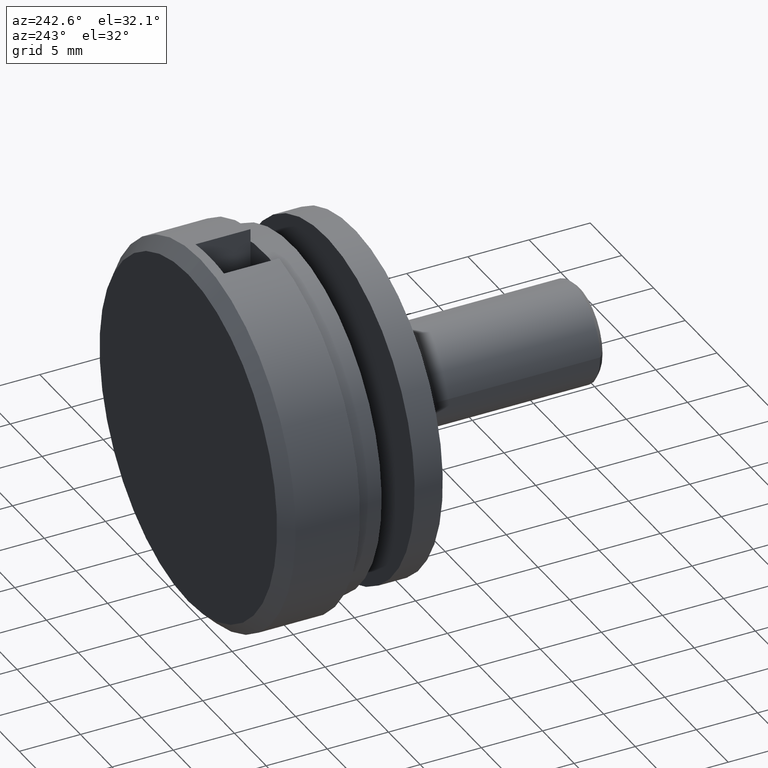
[diagram: clean part render]
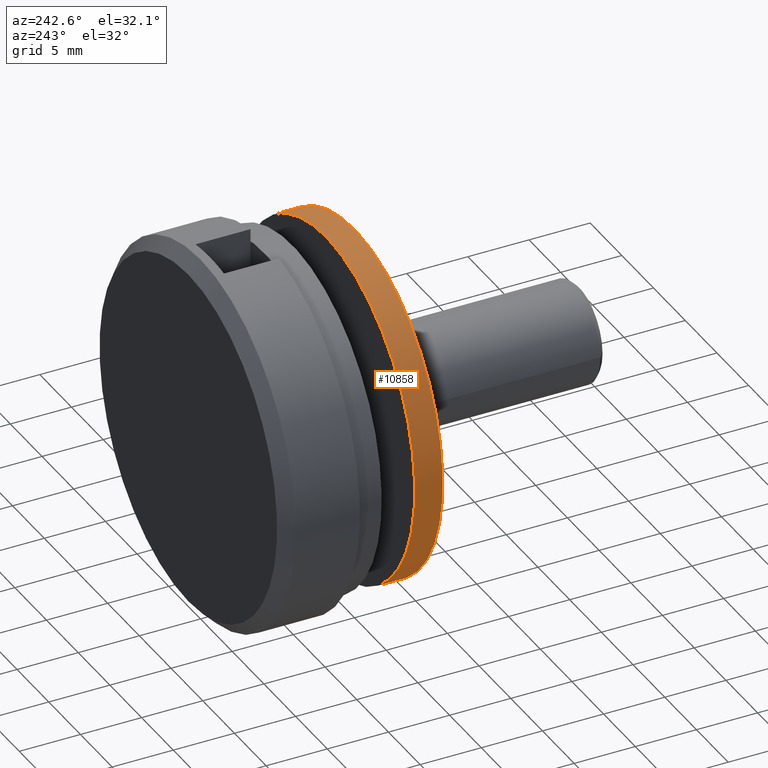
[diagram: same view with one face highlighted and labeled with its STEP entity id]
A machine part, auxiliary view. The second image highlights one B-rep face of the part: STEP entity #10858.
In plain terms, the highlighted cylindrical surface (partial cylindrical patch) has radius 14 mm, axis along (0, 1, 0).
Its self-contained STEP definition (entity closure, byte-faithful):
#155 = DIRECTION ( 'NONE',  ( -0.0000000000000000000, -1.000000000000000000, -0.0000000000000000000 ) ) ;
#424 = EDGE_LOOP ( 'NONE', ( #3548, #3779, #11230, #1381 ) ) ;
#436 = DIRECTION ( 'NONE',  ( 0.0000000000000000000, 0.0000000000000000000, -1.000000000000000000 ) ) ;
#1139 = CARTESIAN_POINT ( 'NONE',  ( 1.714505518806294600E-015, 2.299999999999999800, 14.00000000000000000 ) ) ;
#1381 = ORIENTED_EDGE ( 'NONE', *, *, #2666, .F. ) ;
#2194 = EDGE_CURVE ( 'NONE', #12366, #5411, #7526, .T. ) ;
#2262 = EDGE_CURVE ( 'NONE', #13215, #9637, #9762, .T. ) ;
#2547 = CYLINDRICAL_SURFACE ( 'NONE', #7542, 14.00000000000000000 ) ;
#2666 = EDGE_CURVE ( 'NONE', #9637, #5411, #9084, .T. ) ;
#3548 = ORIENTED_EDGE ( 'NONE', *, *, #2262, .F. ) ;
#3779 = ORIENTED_EDGE ( 'NONE', *, *, #13566, .T. ) ;
#4079 = CARTESIAN_POINT ( 'NONE',  ( 0.0000000000000000000, 2.299999999999999800, 0.0000000000000000000 ) ) ;
#4167 = CARTESIAN_POINT ( 'NONE',  ( 0.0000000000000000000, 0.0000000000000000000, -14.00000000000000000 ) ) ;
#4500 = CARTESIAN_POINT ( 'NONE',  ( 1.714505518806294600E-015, 0.0000000000000000000, 14.00000000000000000 ) ) ;
#4686 = CARTESIAN_POINT ( 'NONE',  ( 0.0000000000000000000, 0.0000000000000000000, 0.0000000000000000000 ) ) ;
#4893 = CARTESIAN_POINT ( 'NONE',  ( 1.714505518806294600E-015, 0.0000000000000000000, 14.00000000000000000 ) ) ;
#5137 = CARTESIAN_POINT ( 'NONE',  ( 0.0000000000000000000, 0.0000000000000000000, 0.0000000000000000000 ) ) ;
#5236 = DIRECTION ( 'NONE',  ( -0.0000000000000000000, -1.000000000000000000, -0.0000000000000000000 ) ) ;
#5411 = VERTEX_POINT ( 'NONE', #4167 ) ;
#5798 = DIRECTION ( 'NONE',  ( -0.0000000000000000000, -1.000000000000000000, -0.0000000000000000000 ) ) ;
#6867 = VECTOR ( 'NONE', #155, 1000.000000000000000 ) ;
#7526 = LINE ( 'NONE', #8435, #9425 ) ;
#7542 = AXIS2_PLACEMENT_3D ( 'NONE', #5137, #12821, #11675 ) ;
#7999 = FACE_OUTER_BOUND ( 'NONE', #424, .T. ) ;
#8435 = CARTESIAN_POINT ( 'NONE',  ( 0.0000000000000000000, 0.0000000000000000000, -14.00000000000000000 ) ) ;
#8513 = AXIS2_PLACEMENT_3D ( 'NONE', #4686, #5798, #436 ) ;
#9084 = CIRCLE ( 'NONE', #8513, 14.00000000000000000 ) ;
#9354 = CARTESIAN_POINT ( 'NONE',  ( 0.0000000000000000000, 2.299999999999999800, -14.00000000000000000 ) ) ;
#9362 = AXIS2_PLACEMENT_3D ( 'NONE', #4079, #5236, #9646 ) ;
#9425 = VECTOR ( 'NONE', #14135, 1000.000000000000000 ) ;
#9637 = VERTEX_POINT ( 'NONE', #4893 ) ;
#9646 = DIRECTION ( 'NONE',  ( 0.0000000000000000000, 0.0000000000000000000, -1.000000000000000000 ) ) ;
#9762 = LINE ( 'NONE', #4500, #6867 ) ;
#10858 = ADVANCED_FACE ( 'NONE', ( #7999 ), #2547, .T. ) ;
#11230 = ORIENTED_EDGE ( 'NONE', *, *, #2194, .T. ) ;
#11623 = CIRCLE ( 'NONE', #9362, 14.00000000000000000 ) ;
#11675 = DIRECTION ( 'NONE',  ( 0.0000000000000000000, 0.0000000000000000000, -1.000000000000000000 ) ) ;
#12366 = VERTEX_POINT ( 'NONE', #9354 ) ;
#12821 = DIRECTION ( 'NONE',  ( -0.0000000000000000000, -1.000000000000000000, -0.0000000000000000000 ) ) ;
#13215 = VERTEX_POINT ( 'NONE', #1139 ) ;
#13566 = EDGE_CURVE ( 'NONE', #13215, #12366, #11623, .T. ) ;
#14135 = DIRECTION ( 'NONE',  ( -0.0000000000000000000, -1.000000000000000000, -0.0000000000000000000 ) ) ;